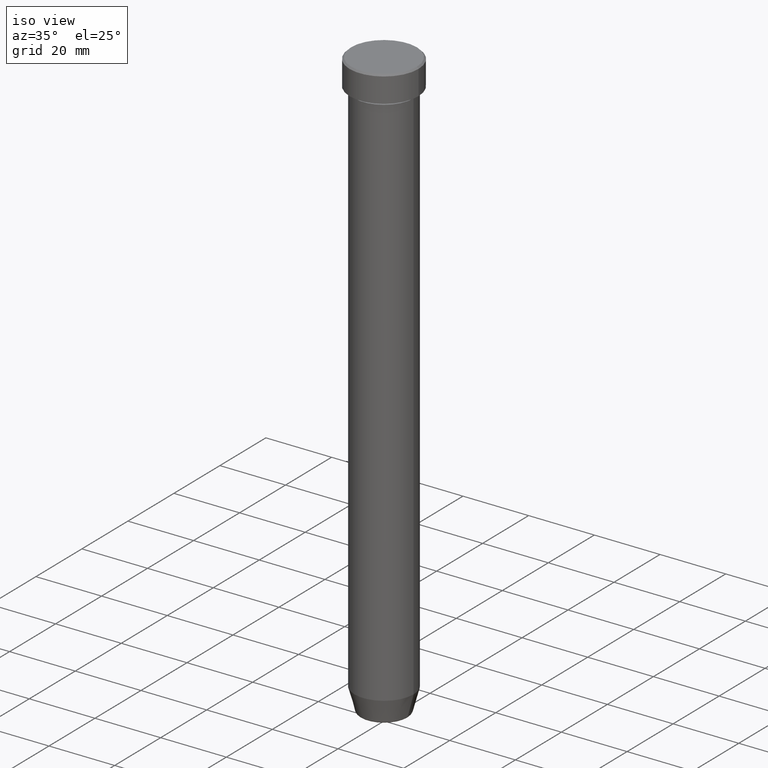
[diagram: clean part render]
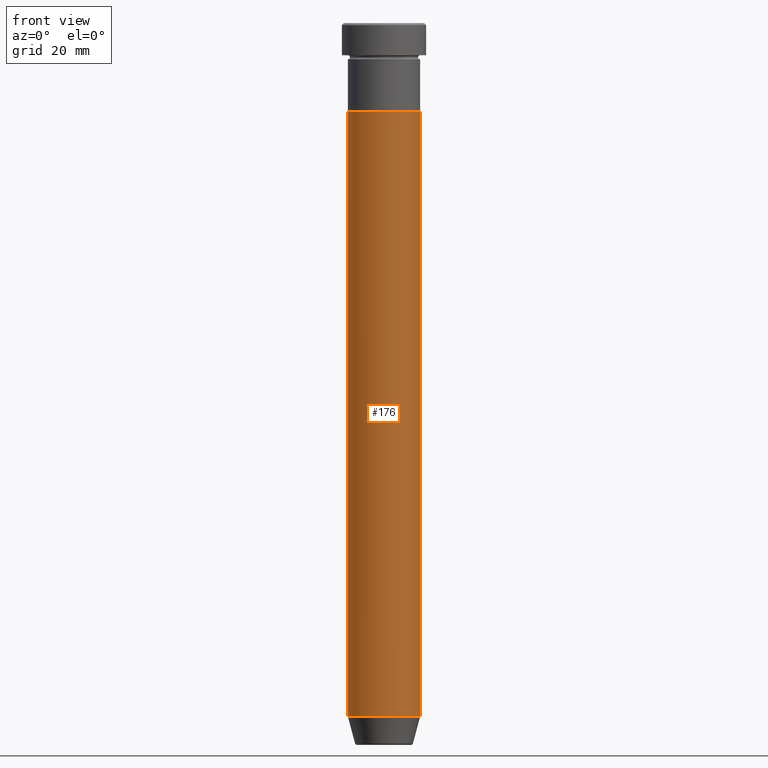
[diagram: tour spotlight — one face highlighted and labeled with its STEP entity id]
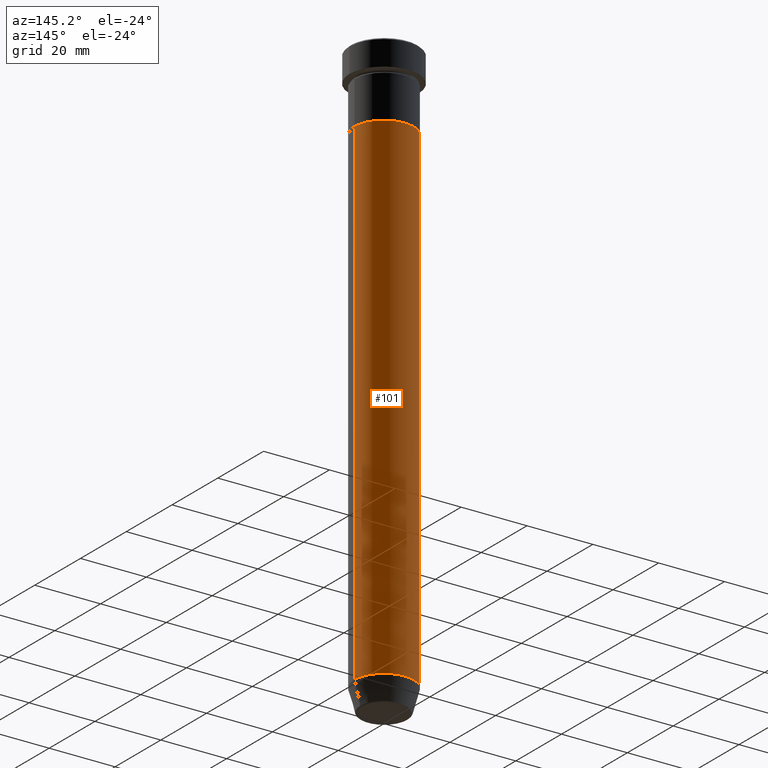
[diagram: tour spotlight — one face highlighted and labeled with its STEP entity id]
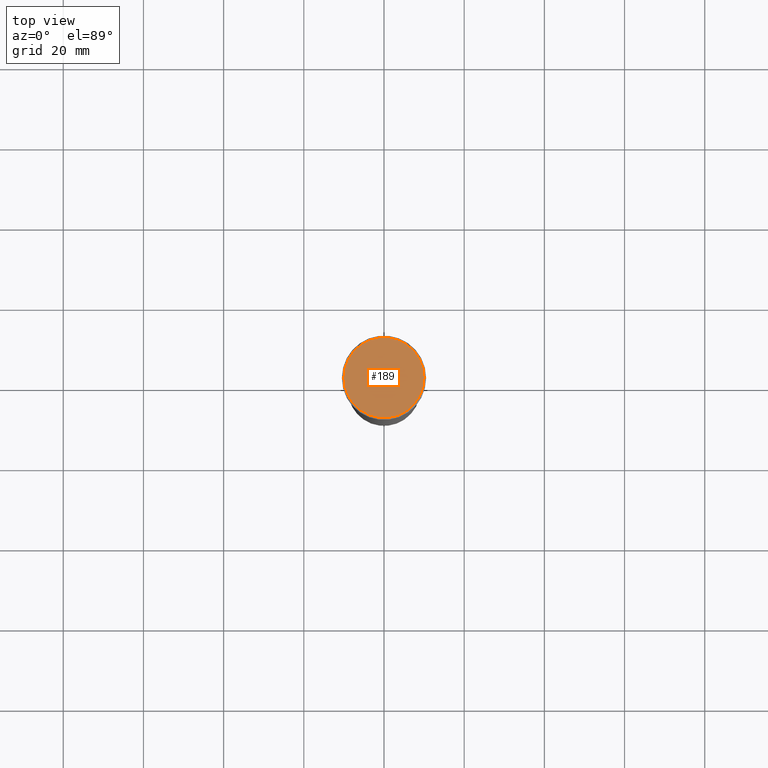
[diagram: tour spotlight — one face highlighted and labeled with its STEP entity id]
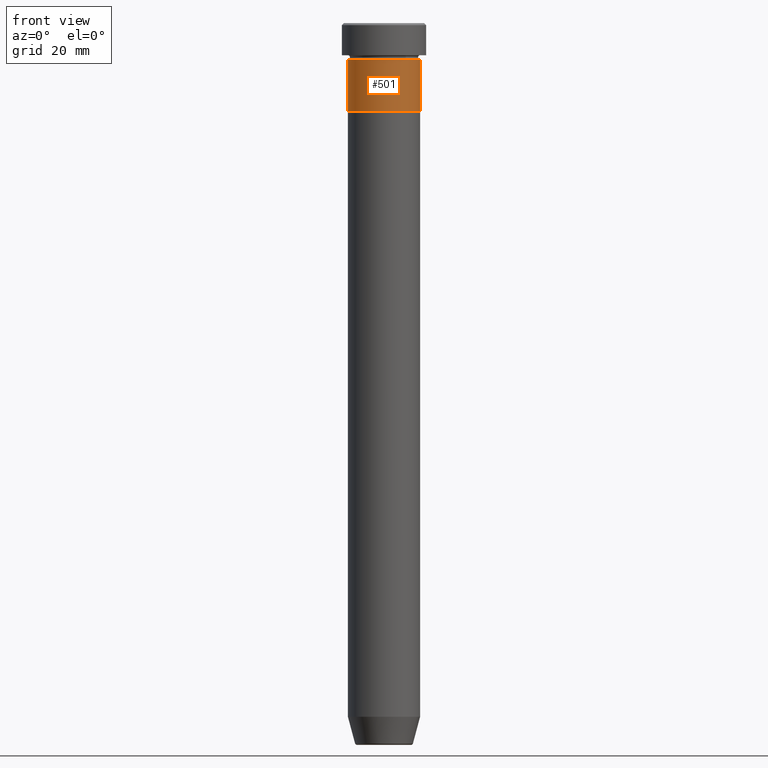
[diagram: tour spotlight — one face highlighted and labeled with its STEP entity id]
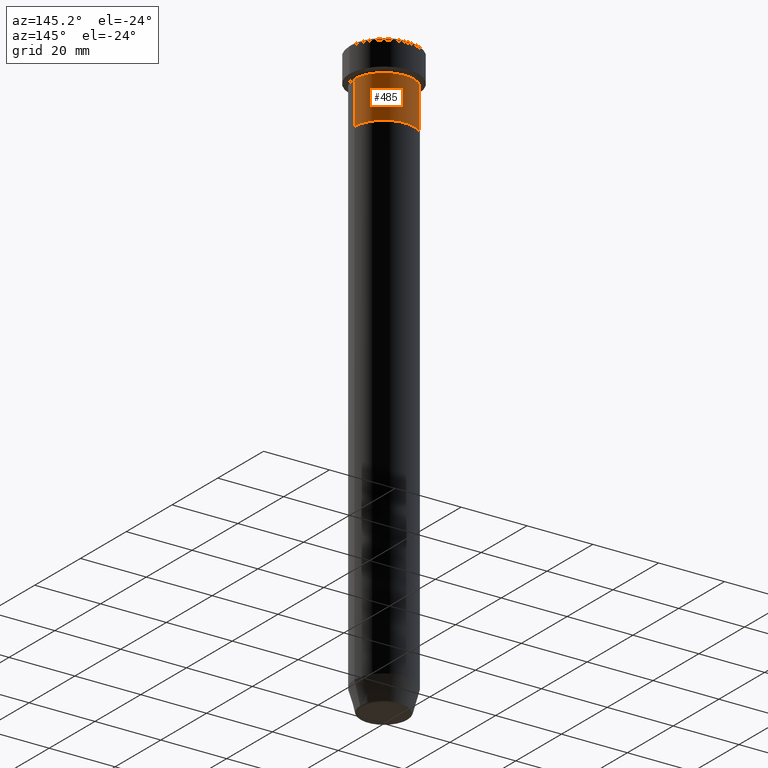
[diagram: tour spotlight — one face highlighted and labeled with its STEP entity id]
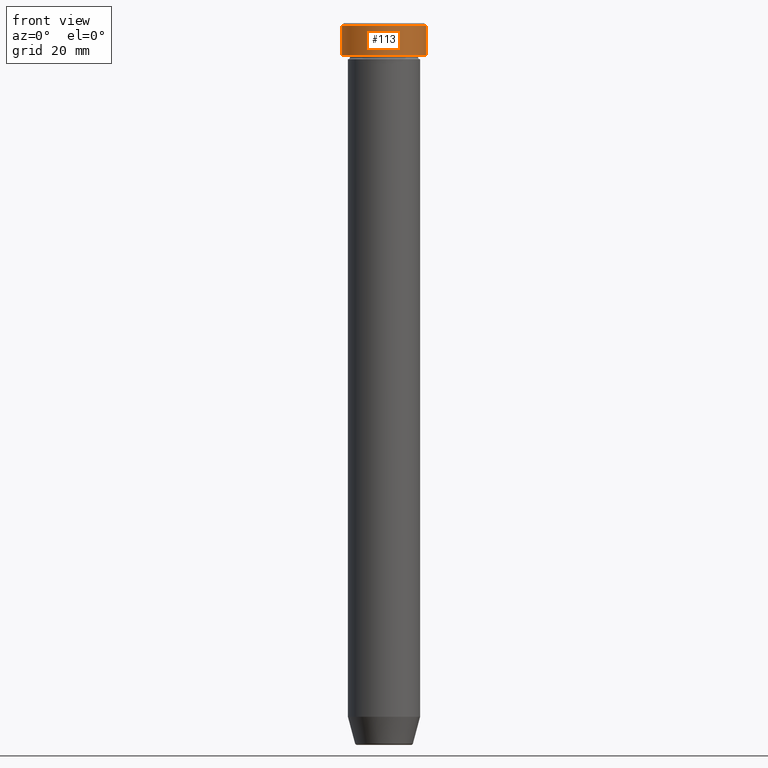
[diagram: tour spotlight — one face highlighted and labeled with its STEP entity id]
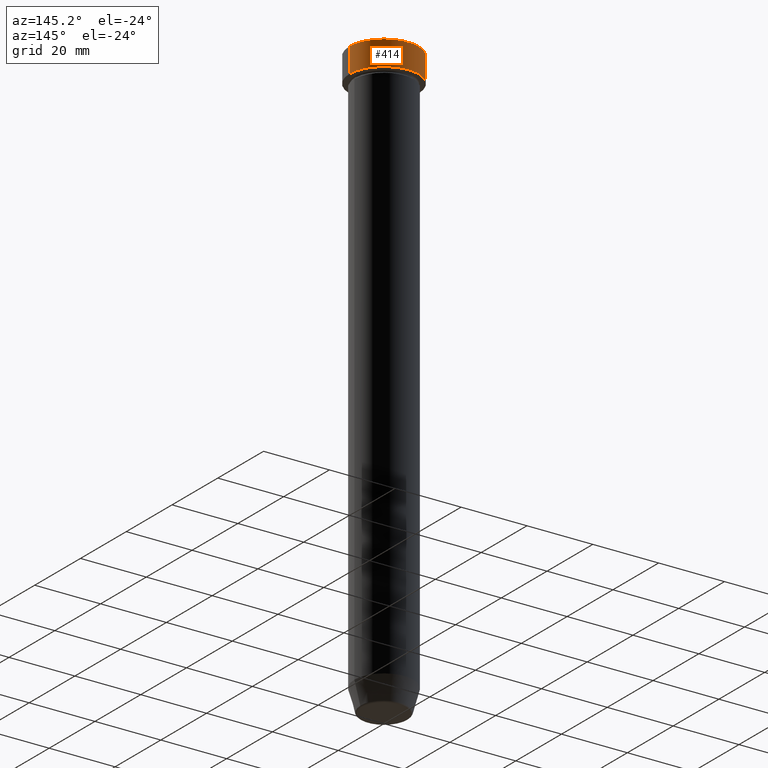
[diagram: tour spotlight — one face highlighted and labeled with its STEP entity id]
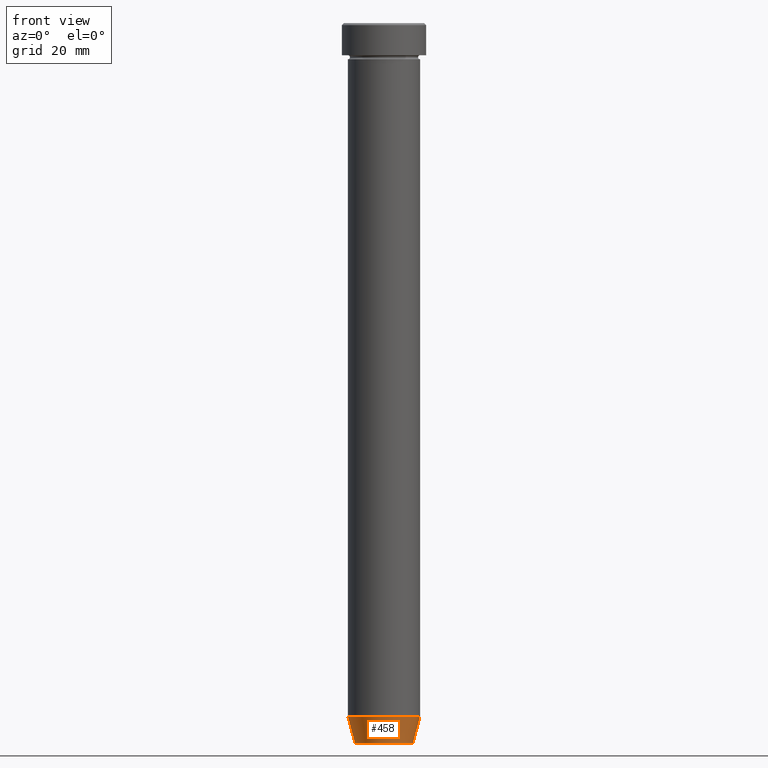
[diagram: tour spotlight — one face highlighted and labeled with its STEP entity id]
A machine part: a face-by-face anatomy tour. The part has 21 B-rep faces; the first image is the clean iso view, then the 8 largest visible faces are spotlighted one at a time (largest first), each with its STEP entity span.

Face 1 — front view, entity #176. In plain terms, the highlighted cylindrical surface (edge-blend (fillet) strip) has radius 9 mm, axis along (-0, -0, 1).
Definition (entity closure, byte-faithful):
#3 = CARTESIAN_POINT ( 'NONE',  ( -9.000000000000000000, 1.102182119232617714E-15, 0.000000000000000000 ) ) ;
#5 = LINE ( 'NONE', #381, #137 ) ;
#12 = VERTEX_POINT ( 'NONE', #341 ) ;
#17 = CARTESIAN_POINT ( 'NONE',  ( 0.000000000000000000, 0.000000000000000000, -173.0000000000000000 ) ) ;
#63 = DIRECTION ( 'NONE',  ( 1.000000000000000000, 0.000000000000000000, 0.000000000000000000 ) ) ;
#73 = EDGE_CURVE ( 'NONE', #116, #117, #5, .T. ) ;
#80 = CIRCLE ( 'NONE', #457, 9.000000000000000000 ) ;
#116 = VERTEX_POINT ( 'NONE', #159 ) ;
#117 = VERTEX_POINT ( 'NONE', #575 ) ;
#118 = DIRECTION ( 'NONE',  ( -0.000000000000000000, -0.000000000000000000, 1.000000000000000000 ) ) ;
#137 = VECTOR ( 'NONE', #150, 1000.000000000000000 ) ;
#150 = DIRECTION ( 'NONE',  ( -0.000000000000000000, -0.000000000000000000, 1.000000000000000000 ) ) ;
#159 = CARTESIAN_POINT ( 'NONE',  ( 9.000000000000000000, 0.000000000000000000, -173.0000000000000000 ) ) ;
#162 = CARTESIAN_POINT ( 'NONE',  ( 0.000000000000000000, 0.000000000000000000, 0.000000000000000000 ) ) ;
#176 = ADVANCED_FACE ( 'NONE', ( #312 ), #395, .T. ) ;
#185 = CARTESIAN_POINT ( 'NONE',  ( -9.000000000000000000, 1.102182119232617714E-15, -22.00000000000000000 ) ) ;
#219 = DIRECTION ( 'NONE',  ( -0.000000000000000000, -0.000000000000000000, 1.000000000000000000 ) ) ;
#232 = ORIENTED_EDGE ( 'NONE', *, *, #567, .T. ) ;
#243 = EDGE_CURVE ( 'NONE', #307, #117, #276, .T. ) ;
#247 = ORIENTED_EDGE ( 'NONE', *, *, #509, .F. ) ;
#253 = ORIENTED_EDGE ( 'NONE', *, *, #243, .F. ) ;
#276 = CIRCLE ( 'NONE', #553, 9.000000000000000000 ) ;
#307 = VERTEX_POINT ( 'NONE', #185 ) ;
#312 = FACE_OUTER_BOUND ( 'NONE', #462, .T. ) ;
#315 = CARTESIAN_POINT ( 'NONE',  ( 0.000000000000000000, 0.000000000000000000, -22.00000000000000000 ) ) ;
#341 = CARTESIAN_POINT ( 'NONE',  ( -9.000000000000000000, 1.102182119232617714E-15, -173.0000000000000000 ) ) ;
#374 = ORIENTED_EDGE ( 'NONE', *, *, #73, .T. ) ;
#380 = LINE ( 'NONE', #3, #420 ) ;
#381 = CARTESIAN_POINT ( 'NONE',  ( 9.000000000000000000, 0.000000000000000000, 0.000000000000000000 ) ) ;
#395 = CYLINDRICAL_SURFACE ( 'NONE', #555, 9.000000000000000000 ) ;
#420 = VECTOR ( 'NONE', #574, 1000.000000000000000 ) ;
#457 = AXIS2_PLACEMENT_3D ( 'NONE', #17, #118, #63 ) ;
#462 = EDGE_LOOP ( 'NONE', ( #247, #232, #374, #253 ) ) ;
#500 = DIRECTION ( 'NONE',  ( 1.000000000000000000, 0.000000000000000000, 0.000000000000000000 ) ) ;
#509 = EDGE_CURVE ( 'NONE', #12, #307, #380, .T. ) ;
#536 = DIRECTION ( 'NONE',  ( -0.000000000000000000, -0.000000000000000000, 1.000000000000000000 ) ) ;
#553 = AXIS2_PLACEMENT_3D ( 'NONE', #315, #536, #500 ) ;
#555 = AXIS2_PLACEMENT_3D ( 'NONE', #162, #219, #593 ) ;
#567 = EDGE_CURVE ( 'NONE', #12, #116, #80, .T. ) ;
#574 = DIRECTION ( 'NONE',  ( -0.000000000000000000, -0.000000000000000000, 1.000000000000000000 ) ) ;
#575 = CARTESIAN_POINT ( 'NONE',  ( 9.000000000000000000, 0.000000000000000000, -22.00000000000000000 ) ) ;
#593 = DIRECTION ( 'NONE',  ( 1.000000000000000000, 0.000000000000000000, 0.000000000000000000 ) ) ;

Face 2 — auxiliary view, entity #101. In plain terms, the highlighted cylindrical surface (edge-blend (fillet) strip) has radius 9 mm, axis along (-0, -0, 1).
Definition (entity closure, byte-faithful):
#3 = CARTESIAN_POINT ( 'NONE',  ( -9.000000000000000000, 1.102182119232617714E-15, 0.000000000000000000 ) ) ;
#5 = LINE ( 'NONE', #381, #137 ) ;
#7 = CIRCLE ( 'NONE', #123, 9.000000000000000000 ) ;
#12 = VERTEX_POINT ( 'NONE', #341 ) ;
#59 = AXIS2_PLACEMENT_3D ( 'NONE', #154, #65, #345 ) ;
#65 = DIRECTION ( 'NONE',  ( -0.000000000000000000, -0.000000000000000000, 1.000000000000000000 ) ) ;
#67 = ORIENTED_EDGE ( 'NONE', *, *, #423, .F. ) ;
#73 = EDGE_CURVE ( 'NONE', #116, #117, #5, .T. ) ;
#85 = EDGE_CURVE ( 'NONE', #116, #12, #7, .T. ) ;
#97 = CARTESIAN_POINT ( 'NONE',  ( 0.000000000000000000, 0.000000000000000000, -22.00000000000000000 ) ) ;
#101 = ADVANCED_FACE ( 'NONE', ( #111 ), #432, .T. ) ;
#107 = DIRECTION ( 'NONE',  ( 1.000000000000000000, 0.000000000000000000, 0.000000000000000000 ) ) ;
#111 = FACE_OUTER_BOUND ( 'NONE', #125, .T. ) ;
#116 = VERTEX_POINT ( 'NONE', #159 ) ;
#117 = VERTEX_POINT ( 'NONE', #575 ) ;
#123 = AXIS2_PLACEMENT_3D ( 'NONE', #349, #339, #107 ) ;
#125 = EDGE_LOOP ( 'NONE', ( #527, #273, #67, #193 ) ) ;
#137 = VECTOR ( 'NONE', #150, 1000.000000000000000 ) ;
#150 = DIRECTION ( 'NONE',  ( -0.000000000000000000, -0.000000000000000000, 1.000000000000000000 ) ) ;
#154 = CARTESIAN_POINT ( 'NONE',  ( 0.000000000000000000, 0.000000000000000000, 0.000000000000000000 ) ) ;
#159 = CARTESIAN_POINT ( 'NONE',  ( 9.000000000000000000, 0.000000000000000000, -173.0000000000000000 ) ) ;
#185 = CARTESIAN_POINT ( 'NONE',  ( -9.000000000000000000, 1.102182119232617714E-15, -22.00000000000000000 ) ) ;
#193 = ORIENTED_EDGE ( 'NONE', *, *, #73, .F. ) ;
#273 = ORIENTED_EDGE ( 'NONE', *, *, #509, .T. ) ;
#282 = DIRECTION ( 'NONE',  ( -0.000000000000000000, -0.000000000000000000, 1.000000000000000000 ) ) ;
#307 = VERTEX_POINT ( 'NONE', #185 ) ;
#339 = DIRECTION ( 'NONE',  ( -0.000000000000000000, -0.000000000000000000, 1.000000000000000000 ) ) ;
#341 = CARTESIAN_POINT ( 'NONE',  ( -9.000000000000000000, 1.102182119232617714E-15, -173.0000000000000000 ) ) ;
#343 = AXIS2_PLACEMENT_3D ( 'NONE', #97, #282, #508 ) ;
#345 = DIRECTION ( 'NONE',  ( 1.000000000000000000, 0.000000000000000000, 0.000000000000000000 ) ) ;
#349 = CARTESIAN_POINT ( 'NONE',  ( 0.000000000000000000, 0.000000000000000000, -173.0000000000000000 ) ) ;
#380 = LINE ( 'NONE', #3, #420 ) ;
#381 = CARTESIAN_POINT ( 'NONE',  ( 9.000000000000000000, 0.000000000000000000, 0.000000000000000000 ) ) ;
#400 = CIRCLE ( 'NONE', #343, 9.000000000000000000 ) ;
#420 = VECTOR ( 'NONE', #574, 1000.000000000000000 ) ;
#423 = EDGE_CURVE ( 'NONE', #117, #307, #400, .T. ) ;
#432 = CYLINDRICAL_SURFACE ( 'NONE', #59, 9.000000000000000000 ) ;
#508 = DIRECTION ( 'NONE',  ( 1.000000000000000000, 0.000000000000000000, 0.000000000000000000 ) ) ;
#509 = EDGE_CURVE ( 'NONE', #12, #307, #380, .T. ) ;
#527 = ORIENTED_EDGE ( 'NONE', *, *, #85, .T. ) ;
#574 = DIRECTION ( 'NONE',  ( -0.000000000000000000, -0.000000000000000000, 1.000000000000000000 ) ) ;
#575 = CARTESIAN_POINT ( 'NONE',  ( 9.000000000000000000, 0.000000000000000000, -22.00000000000000000 ) ) ;

Face 3 — top view, entity #189. In plain terms, the highlighted planar face has unit normal (0, -0, 1).
Definition (entity closure, byte-faithful):
#47 = VERTEX_POINT ( 'NONE', #384 ) ;
#58 = AXIS2_PLACEMENT_3D ( 'NONE', #256, #518, #292 ) ;
#64 = EDGE_CURVE ( 'NONE', #47, #161, #248, .T. ) ;
#72 = CARTESIAN_POINT ( 'NONE',  ( 0.000000000000000000, 0.000000000000000000, 0.000000000000000000 ) ) ;
#78 = DIRECTION ( 'NONE',  ( 0.000000000000000000, -0.000000000000000000, 1.000000000000000000 ) ) ;
#142 = ORIENTED_EDGE ( 'NONE', *, *, #64, .T. ) ;
#161 = VERTEX_POINT ( 'NONE', #170 ) ;
#170 = CARTESIAN_POINT ( 'NONE',  ( 10.00000000000000178, 1.255262969126037241E-15, 0.000000000000000000 ) ) ;
#178 = AXIS2_PLACEMENT_3D ( 'NONE', #72, #386, #258 ) ;
#189 = ADVANCED_FACE ( 'NONE', ( #546 ), #322, .T. ) ;
#223 = DIRECTION ( 'NONE',  ( 1.000000000000000000, 0.000000000000000000, 0.000000000000000000 ) ) ;
#248 = CIRCLE ( 'NONE', #178, 10.00000000000000178 ) ;
#256 = CARTESIAN_POINT ( 'NONE',  ( 0.000000000000000000, 0.000000000000000000, 0.000000000000000000 ) ) ;
#258 = DIRECTION ( 'NONE',  ( 1.000000000000000000, 0.000000000000000000, 0.000000000000000000 ) ) ;
#289 = EDGE_LOOP ( 'NONE', ( #142, #415 ) ) ;
#292 = DIRECTION ( 'NONE',  ( 1.000000000000000000, 0.000000000000000000, 0.000000000000000000 ) ) ;
#303 = CIRCLE ( 'NONE', #58, 10.00000000000000178 ) ;
#305 = AXIS2_PLACEMENT_3D ( 'NONE', #542, #78, #223 ) ;
#322 = PLANE ( 'NONE',  #305 ) ;
#384 = CARTESIAN_POINT ( 'NONE',  ( -10.00000000000000178, 0.000000000000000000, 0.000000000000000000 ) ) ;
#386 = DIRECTION ( 'NONE',  ( -0.000000000000000000, -0.000000000000000000, 1.000000000000000000 ) ) ;
#415 = ORIENTED_EDGE ( 'NONE', *, *, #521, .T. ) ;
#518 = DIRECTION ( 'NONE',  ( -0.000000000000000000, -0.000000000000000000, 1.000000000000000000 ) ) ;
#521 = EDGE_CURVE ( 'NONE', #161, #47, #303, .T. ) ;
#542 = CARTESIAN_POINT ( 'NONE',  ( 0.000000000000000000, 0.000000000000000000, 0.000000000000000000 ) ) ;
#546 = FACE_OUTER_BOUND ( 'NONE', #289, .T. ) ;

Face 4 — front view, entity #501. In plain terms, the highlighted cylindrical surface (edge-blend (fillet) strip) has radius 9 mm, axis along (-0, -0, 1).
Definition (entity closure, byte-faithful):
#6 = CIRCLE ( 'NONE', #543, 9.000000000000000000 ) ;
#25 = CARTESIAN_POINT ( 'NONE',  ( -9.000000000000000000, 1.102182119232617714E-15, -22.00000000000000000 ) ) ;
#35 = CARTESIAN_POINT ( 'NONE',  ( 9.000000000000000000, 0.000000000000000000, -9.000000000000001776 ) ) ;
#44 = EDGE_CURVE ( 'NONE', #229, #470, #293, .T. ) ;
#48 = CARTESIAN_POINT ( 'NONE',  ( 0.000000000000000000, 0.000000000000000000, -22.00000000000000000 ) ) ;
#52 = DIRECTION ( 'NONE',  ( -0.000000000000000000, -0.000000000000000000, 1.000000000000000000 ) ) ;
#53 = ORIENTED_EDGE ( 'NONE', *, *, #347, .T. ) ;
#54 = DIRECTION ( 'NONE',  ( 1.000000000000000000, 0.000000000000000000, 0.000000000000000000 ) ) ;
#66 = CARTESIAN_POINT ( 'NONE',  ( 0.000000000000000000, 0.000000000000000000, -9.000000000000001776 ) ) ;
#75 = DIRECTION ( 'NONE',  ( -0.000000000000000000, -0.000000000000000000, 1.000000000000000000 ) ) ;
#86 = CARTESIAN_POINT ( 'NONE',  ( 9.000000000000000000, 0.000000000000000000, 0.000000000000000000 ) ) ;
#100 = AXIS2_PLACEMENT_3D ( 'NONE', #48, #52, #370 ) ;
#103 = ORIENTED_EDGE ( 'NONE', *, *, #277, .T. ) ;
#147 = DIRECTION ( 'NONE',  ( -0.000000000000000000, -0.000000000000000000, 1.000000000000000000 ) ) ;
#165 = EDGE_LOOP ( 'NONE', ( #285, #53, #103, #205 ) ) ;
#175 = CARTESIAN_POINT ( 'NONE',  ( 9.000000000000000000, 0.000000000000000000, -22.00000000000000000 ) ) ;
#205 = ORIENTED_EDGE ( 'NONE', *, *, #517, .F. ) ;
#211 = VERTEX_POINT ( 'NONE', #35 ) ;
#229 = VERTEX_POINT ( 'NONE', #25 ) ;
#246 = CIRCLE ( 'NONE', #100, 9.000000000000000000 ) ;
#277 = EDGE_CURVE ( 'NONE', #387, #211, #539, .T. ) ;
#284 = AXIS2_PLACEMENT_3D ( 'NONE', #566, #350, #348 ) ;
#285 = ORIENTED_EDGE ( 'NONE', *, *, #44, .F. ) ;
#293 = LINE ( 'NONE', #516, #342 ) ;
#342 = VECTOR ( 'NONE', #484, 1000.000000000000000 ) ;
#347 = EDGE_CURVE ( 'NONE', #229, #387, #246, .T. ) ;
#348 = DIRECTION ( 'NONE',  ( 1.000000000000000000, 0.000000000000000000, 0.000000000000000000 ) ) ;
#350 = DIRECTION ( 'NONE',  ( -0.000000000000000000, -0.000000000000000000, 1.000000000000000000 ) ) ;
#370 = DIRECTION ( 'NONE',  ( 1.000000000000000000, 0.000000000000000000, 0.000000000000000000 ) ) ;
#383 = FACE_OUTER_BOUND ( 'NONE', #165, .T. ) ;
#387 = VERTEX_POINT ( 'NONE', #175 ) ;
#425 = CARTESIAN_POINT ( 'NONE',  ( -9.000000000000000000, 1.102182119232617714E-15, -9.000000000000001776 ) ) ;
#470 = VERTEX_POINT ( 'NONE', #425 ) ;
#471 = CYLINDRICAL_SURFACE ( 'NONE', #284, 9.000000000000000000 ) ;
#484 = DIRECTION ( 'NONE',  ( -0.000000000000000000, -0.000000000000000000, 1.000000000000000000 ) ) ;
#501 = ADVANCED_FACE ( 'NONE', ( #383 ), #471, .T. ) ;
#516 = CARTESIAN_POINT ( 'NONE',  ( -9.000000000000000000, 1.102182119232617714E-15, 0.000000000000000000 ) ) ;
#517 = EDGE_CURVE ( 'NONE', #470, #211, #6, .T. ) ;
#519 = VECTOR ( 'NONE', #75, 1000.000000000000000 ) ;
#539 = LINE ( 'NONE', #86, #519 ) ;
#543 = AXIS2_PLACEMENT_3D ( 'NONE', #66, #147, #54 ) ;
#566 = CARTESIAN_POINT ( 'NONE',  ( 0.000000000000000000, 0.000000000000000000, 0.000000000000000000 ) ) ;

Face 5 — auxiliary view, entity #485. In plain terms, the highlighted cylindrical surface (edge-blend (fillet) strip) has radius 9 mm, axis along (-0, -0, 1).
Definition (entity closure, byte-faithful):
#1 = DIRECTION ( 'NONE',  ( 1.000000000000000000, 0.000000000000000000, 0.000000000000000000 ) ) ;
#14 = ORIENTED_EDGE ( 'NONE', *, *, #277, .F. ) ;
#25 = CARTESIAN_POINT ( 'NONE',  ( -9.000000000000000000, 1.102182119232617714E-15, -22.00000000000000000 ) ) ;
#28 = CIRCLE ( 'NONE', #224, 9.000000000000000000 ) ;
#35 = CARTESIAN_POINT ( 'NONE',  ( 9.000000000000000000, 0.000000000000000000, -9.000000000000001776 ) ) ;
#44 = EDGE_CURVE ( 'NONE', #229, #470, #293, .T. ) ;
#75 = DIRECTION ( 'NONE',  ( -0.000000000000000000, -0.000000000000000000, 1.000000000000000000 ) ) ;
#86 = CARTESIAN_POINT ( 'NONE',  ( 9.000000000000000000, 0.000000000000000000, 0.000000000000000000 ) ) ;
#99 = CARTESIAN_POINT ( 'NONE',  ( 0.000000000000000000, 0.000000000000000000, -22.00000000000000000 ) ) ;
#106 = CARTESIAN_POINT ( 'NONE',  ( 0.000000000000000000, 0.000000000000000000, 0.000000000000000000 ) ) ;
#112 = AXIS2_PLACEMENT_3D ( 'NONE', #106, #160, #198 ) ;
#153 = DIRECTION ( 'NONE',  ( -0.000000000000000000, -0.000000000000000000, 1.000000000000000000 ) ) ;
#158 = CYLINDRICAL_SURFACE ( 'NONE', #112, 9.000000000000000000 ) ;
#160 = DIRECTION ( 'NONE',  ( -0.000000000000000000, -0.000000000000000000, 1.000000000000000000 ) ) ;
#175 = CARTESIAN_POINT ( 'NONE',  ( 9.000000000000000000, 0.000000000000000000, -22.00000000000000000 ) ) ;
#179 = EDGE_LOOP ( 'NONE', ( #257, #376, #558, #14 ) ) ;
#198 = DIRECTION ( 'NONE',  ( 1.000000000000000000, 0.000000000000000000, 0.000000000000000000 ) ) ;
#211 = VERTEX_POINT ( 'NONE', #35 ) ;
#224 = AXIS2_PLACEMENT_3D ( 'NONE', #245, #153, #249 ) ;
#229 = VERTEX_POINT ( 'NONE', #25 ) ;
#245 = CARTESIAN_POINT ( 'NONE',  ( 0.000000000000000000, 0.000000000000000000, -9.000000000000001776 ) ) ;
#249 = DIRECTION ( 'NONE',  ( 1.000000000000000000, 0.000000000000000000, 0.000000000000000000 ) ) ;
#257 = ORIENTED_EDGE ( 'NONE', *, *, #431, .T. ) ;
#277 = EDGE_CURVE ( 'NONE', #387, #211, #539, .T. ) ;
#287 = DIRECTION ( 'NONE',  ( -0.000000000000000000, -0.000000000000000000, 1.000000000000000000 ) ) ;
#293 = LINE ( 'NONE', #516, #342 ) ;
#342 = VECTOR ( 'NONE', #484, 1000.000000000000000 ) ;
#376 = ORIENTED_EDGE ( 'NONE', *, *, #44, .T. ) ;
#387 = VERTEX_POINT ( 'NONE', #175 ) ;
#425 = CARTESIAN_POINT ( 'NONE',  ( -9.000000000000000000, 1.102182119232617714E-15, -9.000000000000001776 ) ) ;
#431 = EDGE_CURVE ( 'NONE', #387, #229, #494, .T. ) ;
#435 = AXIS2_PLACEMENT_3D ( 'NONE', #99, #287, #1 ) ;
#469 = EDGE_CURVE ( 'NONE', #211, #470, #28, .T. ) ;
#470 = VERTEX_POINT ( 'NONE', #425 ) ;
#483 = FACE_OUTER_BOUND ( 'NONE', #179, .T. ) ;
#484 = DIRECTION ( 'NONE',  ( -0.000000000000000000, -0.000000000000000000, 1.000000000000000000 ) ) ;
#485 = ADVANCED_FACE ( 'NONE', ( #483 ), #158, .T. ) ;
#494 = CIRCLE ( 'NONE', #435, 9.000000000000000000 ) ;
#516 = CARTESIAN_POINT ( 'NONE',  ( -9.000000000000000000, 1.102182119232617714E-15, 0.000000000000000000 ) ) ;
#519 = VECTOR ( 'NONE', #75, 1000.000000000000000 ) ;
#539 = LINE ( 'NONE', #86, #519 ) ;
#558 = ORIENTED_EDGE ( 'NONE', *, *, #469, .F. ) ;

Face 6 — front view, entity #113. In plain terms, the highlighted cylindrical surface (partial cylindrical patch) has radius 10.5 mm, axis along (-0, -0, 1).
Definition (entity closure, byte-faithful):
#61 = CARTESIAN_POINT ( 'NONE',  ( 10.50000000000000000, 0.000000000000000000, -8.000000000000000000 ) ) ;
#68 = AXIS2_PLACEMENT_3D ( 'NONE', #134, #233, #424 ) ;
#105 = CARTESIAN_POINT ( 'NONE',  ( -10.50000000000000000, 1.285879139104720831E-15, 0.000000000000000000 ) ) ;
#110 = LINE ( 'NONE', #105, #564 ) ;
#113 = ADVANCED_FACE ( 'NONE', ( #115 ), #482, .T. ) ;
#115 = FACE_OUTER_BOUND ( 'NONE', #333, .T. ) ;
#121 = ORIENTED_EDGE ( 'NONE', *, *, #371, .T. ) ;
#134 = CARTESIAN_POINT ( 'NONE',  ( 0.000000000000000000, 0.000000000000000000, -8.000000000000000000 ) ) ;
#183 = VERTEX_POINT ( 'NONE', #214 ) ;
#188 = DIRECTION ( 'NONE',  ( 0.000000000000000000, 0.000000000000000000, -1.000000000000000000 ) ) ;
#190 = VECTOR ( 'NONE', #453, 1000.000000000000000 ) ;
#191 = DIRECTION ( 'NONE',  ( -0.000000000000000000, -0.000000000000000000, 1.000000000000000000 ) ) ;
#200 = ORIENTED_EDGE ( 'NONE', *, *, #513, .F. ) ;
#202 = DIRECTION ( 'NONE',  ( 1.000000000000000000, 0.000000000000000000, 0.000000000000000000 ) ) ;
#214 = CARTESIAN_POINT ( 'NONE',  ( -10.50000000000000000, 1.285879139104720831E-15, -8.000000000000000000 ) ) ;
#227 = EDGE_CURVE ( 'NONE', #556, #416, #409, .T. ) ;
#233 = DIRECTION ( 'NONE',  ( -0.000000000000000000, -0.000000000000000000, 1.000000000000000000 ) ) ;
#240 = ORIENTED_EDGE ( 'NONE', *, *, #227, .T. ) ;
#255 = CARTESIAN_POINT ( 'NONE',  ( 0.000000000000000000, 0.000000000000000000, 0.000000000000000000 ) ) ;
#294 = AXIS2_PLACEMENT_3D ( 'NONE', #255, #434, #202 ) ;
#298 = ORIENTED_EDGE ( 'NONE', *, *, #367, .T. ) ;
#323 = CARTESIAN_POINT ( 'NONE',  ( 0.000000000000000000, 0.000000000000000000, -0.5000000000000023315 ) ) ;
#333 = EDGE_LOOP ( 'NONE', ( #200, #298, #240, #121 ) ) ;
#334 = CIRCLE ( 'NONE', #68, 10.50000000000000000 ) ;
#367 = EDGE_CURVE ( 'NONE', #183, #556, #334, .T. ) ;
#371 = EDGE_CURVE ( 'NONE', #416, #392, #427, .T. ) ;
#392 = VERTEX_POINT ( 'NONE', #560 ) ;
#409 = LINE ( 'NONE', #450, #190 ) ;
#416 = VERTEX_POINT ( 'NONE', #548 ) ;
#419 = AXIS2_PLACEMENT_3D ( 'NONE', #323, #188, #596 ) ;
#424 = DIRECTION ( 'NONE',  ( 1.000000000000000000, 0.000000000000000000, 0.000000000000000000 ) ) ;
#427 = CIRCLE ( 'NONE', #419, 10.50000000000000000 ) ;
#434 = DIRECTION ( 'NONE',  ( -0.000000000000000000, -0.000000000000000000, 1.000000000000000000 ) ) ;
#450 = CARTESIAN_POINT ( 'NONE',  ( 10.50000000000000000, 0.000000000000000000, 0.000000000000000000 ) ) ;
#453 = DIRECTION ( 'NONE',  ( -0.000000000000000000, -0.000000000000000000, 1.000000000000000000 ) ) ;
#482 = CYLINDRICAL_SURFACE ( 'NONE', #294, 10.50000000000000000 ) ;
#513 = EDGE_CURVE ( 'NONE', #183, #392, #110, .T. ) ;
#548 = CARTESIAN_POINT ( 'NONE',  ( 10.50000000000000000, 0.000000000000000000, -0.5000000000000023315 ) ) ;
#556 = VERTEX_POINT ( 'NONE', #61 ) ;
#560 = CARTESIAN_POINT ( 'NONE',  ( -10.50000000000000000, 1.285879139104720831E-15, -0.5000000000000023315 ) ) ;
#564 = VECTOR ( 'NONE', #191, 1000.000000000000000 ) ;
#596 = DIRECTION ( 'NONE',  ( 1.000000000000000000, 0.000000000000000000, 0.000000000000000000 ) ) ;

Face 7 — auxiliary view, entity #414. In plain terms, the highlighted cylindrical surface (partial cylindrical patch) has radius 10.5 mm, axis along (-0, -0, 1).
Definition (entity closure, byte-faithful):
#27 = CIRCLE ( 'NONE', #265, 10.50000000000000000 ) ;
#60 = ORIENTED_EDGE ( 'NONE', *, *, #513, .T. ) ;
#61 = CARTESIAN_POINT ( 'NONE',  ( 10.50000000000000000, 0.000000000000000000, -8.000000000000000000 ) ) ;
#70 = ORIENTED_EDGE ( 'NONE', *, *, #238, .T. ) ;
#88 = CIRCLE ( 'NONE', #426, 10.50000000000000000 ) ;
#105 = CARTESIAN_POINT ( 'NONE',  ( -10.50000000000000000, 1.285879139104720831E-15, 0.000000000000000000 ) ) ;
#110 = LINE ( 'NONE', #105, #564 ) ;
#141 = ORIENTED_EDGE ( 'NONE', *, *, #227, .F. ) ;
#143 = DIRECTION ( 'NONE',  ( -0.000000000000000000, -0.000000000000000000, 1.000000000000000000 ) ) ;
#183 = VERTEX_POINT ( 'NONE', #214 ) ;
#190 = VECTOR ( 'NONE', #453, 1000.000000000000000 ) ;
#191 = DIRECTION ( 'NONE',  ( -0.000000000000000000, -0.000000000000000000, 1.000000000000000000 ) ) ;
#214 = CARTESIAN_POINT ( 'NONE',  ( -10.50000000000000000, 1.285879139104720831E-15, -8.000000000000000000 ) ) ;
#222 = CARTESIAN_POINT ( 'NONE',  ( 0.000000000000000000, 0.000000000000000000, -0.5000000000000023315 ) ) ;
#227 = EDGE_CURVE ( 'NONE', #556, #416, #409, .T. ) ;
#236 = EDGE_LOOP ( 'NONE', ( #241, #60, #70, #141 ) ) ;
#238 = EDGE_CURVE ( 'NONE', #392, #416, #88, .T. ) ;
#241 = ORIENTED_EDGE ( 'NONE', *, *, #288, .T. ) ;
#264 = DIRECTION ( 'NONE',  ( 1.000000000000000000, 0.000000000000000000, 0.000000000000000000 ) ) ;
#265 = AXIS2_PLACEMENT_3D ( 'NONE', #364, #422, #552 ) ;
#288 = EDGE_CURVE ( 'NONE', #556, #183, #27, .T. ) ;
#355 = DIRECTION ( 'NONE',  ( 0.000000000000000000, 0.000000000000000000, -1.000000000000000000 ) ) ;
#364 = CARTESIAN_POINT ( 'NONE',  ( 0.000000000000000000, 0.000000000000000000, -8.000000000000000000 ) ) ;
#392 = VERTEX_POINT ( 'NONE', #560 ) ;
#409 = LINE ( 'NONE', #450, #190 ) ;
#414 = ADVANCED_FACE ( 'NONE', ( #594 ), #557, .T. ) ;
#416 = VERTEX_POINT ( 'NONE', #548 ) ;
#422 = DIRECTION ( 'NONE',  ( -0.000000000000000000, -0.000000000000000000, 1.000000000000000000 ) ) ;
#426 = AXIS2_PLACEMENT_3D ( 'NONE', #222, #355, #264 ) ;
#450 = CARTESIAN_POINT ( 'NONE',  ( 10.50000000000000000, 0.000000000000000000, 0.000000000000000000 ) ) ;
#453 = DIRECTION ( 'NONE',  ( -0.000000000000000000, -0.000000000000000000, 1.000000000000000000 ) ) ;
#502 = CARTESIAN_POINT ( 'NONE',  ( 0.000000000000000000, 0.000000000000000000, 0.000000000000000000 ) ) ;
#506 = DIRECTION ( 'NONE',  ( 1.000000000000000000, 0.000000000000000000, 0.000000000000000000 ) ) ;
#513 = EDGE_CURVE ( 'NONE', #183, #392, #110, .T. ) ;
#548 = CARTESIAN_POINT ( 'NONE',  ( 10.50000000000000000, 0.000000000000000000, -0.5000000000000023315 ) ) ;
#552 = DIRECTION ( 'NONE',  ( 1.000000000000000000, 0.000000000000000000, 0.000000000000000000 ) ) ;
#556 = VERTEX_POINT ( 'NONE', #61 ) ;
#557 = CYLINDRICAL_SURFACE ( 'NONE', #573, 10.50000000000000000 ) ;
#560 = CARTESIAN_POINT ( 'NONE',  ( -10.50000000000000000, 1.285879139104720831E-15, -0.5000000000000023315 ) ) ;
#564 = VECTOR ( 'NONE', #191, 1000.000000000000000 ) ;
#573 = AXIS2_PLACEMENT_3D ( 'NONE', #502, #143, #506 ) ;
#594 = FACE_OUTER_BOUND ( 'NONE', #236, .T. ) ;

Face 8 — front view, entity #458. In plain terms, the highlighted conical surface has half-angle 15 deg.
Definition (entity closure, byte-faithful):
#8 = ORIENTED_EDGE ( 'NONE', *, *, #559, .T. ) ;
#9 = DIRECTION ( 'NONE',  ( 0.2588190451025210725, 0.000000000000000000, 0.9659258262890680902 ) ) ;
#12 = VERTEX_POINT ( 'NONE', #341 ) ;
#17 = CARTESIAN_POINT ( 'NONE',  ( 0.000000000000000000, 0.000000000000000000, -173.0000000000000000 ) ) ;
#20 = CARTESIAN_POINT ( 'NONE',  ( 0.000000000000000000, 0.000000000000000000, -179.6294095225512706 ) ) ;
#55 = CARTESIAN_POINT ( 'NONE',  ( 7.124355652982136355, 0.000000000000000000, -180.0000000000000000 ) ) ;
#63 = DIRECTION ( 'NONE',  ( 1.000000000000000000, 0.000000000000000000, 0.000000000000000000 ) ) ;
#80 = CIRCLE ( 'NONE', #457, 9.000000000000000000 ) ;
#84 = DIRECTION ( 'NONE',  ( -0.2588190451025210725, 3.169619151431769255E-17, 0.9659258262890680902 ) ) ;
#96 = ORIENTED_EDGE ( 'NONE', *, *, #131, .F. ) ;
#98 = ORIENTED_EDGE ( 'NONE', *, *, #567, .F. ) ;
#116 = VERTEX_POINT ( 'NONE', #159 ) ;
#118 = DIRECTION ( 'NONE',  ( -0.000000000000000000, -0.000000000000000000, 1.000000000000000000 ) ) ;
#119 = LINE ( 'NONE', #301, #535 ) ;
#122 = VECTOR ( 'NONE', #9, 1000.000000000000114 ) ;
#131 = EDGE_CURVE ( 'NONE', #259, #12, #119, .T. ) ;
#140 = CIRCLE ( 'NONE', #477, 7.223655072137189492 ) ;
#146 = CONICAL_SURFACE ( 'NONE', #316, 7.124355652982136355, 0.2617993877991497964 ) ;
#159 = CARTESIAN_POINT ( 'NONE',  ( 9.000000000000000000, 0.000000000000000000, -173.0000000000000000 ) ) ;
#186 = EDGE_CURVE ( 'NONE', #259, #274, #140, .T. ) ;
#197 = EDGE_LOOP ( 'NONE', ( #96, #463, #8, #98 ) ) ;
#207 = DIRECTION ( 'NONE',  ( -1.000000000000000000, 0.000000000000000000, 0.000000000000000000 ) ) ;
#242 = DIRECTION ( 'NONE',  ( 1.000000000000000000, 0.000000000000000000, 0.000000000000000000 ) ) ;
#259 = VERTEX_POINT ( 'NONE', #360 ) ;
#274 = VERTEX_POINT ( 'NONE', #588 ) ;
#290 = FACE_OUTER_BOUND ( 'NONE', #197, .T. ) ;
#301 = CARTESIAN_POINT ( 'NONE',  ( -7.124355652982136355, 8.724819346411924116E-16, -180.0000000000000000 ) ) ;
#316 = AXIS2_PLACEMENT_3D ( 'NONE', #340, #428, #242 ) ;
#340 = CARTESIAN_POINT ( 'NONE',  ( 0.000000000000000000, 0.000000000000000000, -180.0000000000000000 ) ) ;
#341 = CARTESIAN_POINT ( 'NONE',  ( -9.000000000000000000, 1.102182119232617714E-15, -173.0000000000000000 ) ) ;
#360 = CARTESIAN_POINT ( 'NONE',  ( -7.223655072137189492, 9.934123627281763137E-16, -179.6294095225512706 ) ) ;
#363 = DIRECTION ( 'NONE',  ( -0.000000000000000000, -0.000000000000000000, 1.000000000000000000 ) ) ;
#428 = DIRECTION ( 'NONE',  ( -0.000000000000000000, -0.000000000000000000, 1.000000000000000000 ) ) ;
#457 = AXIS2_PLACEMENT_3D ( 'NONE', #17, #118, #63 ) ;
#458 = ADVANCED_FACE ( 'NONE', ( #290 ), #146, .T. ) ;
#463 = ORIENTED_EDGE ( 'NONE', *, *, #186, .T. ) ;
#477 = AXIS2_PLACEMENT_3D ( 'NONE', #20, #363, #207 ) ;
#480 = LINE ( 'NONE', #55, #122 ) ;
#535 = VECTOR ( 'NONE', #84, 1000.000000000000114 ) ;
#559 = EDGE_CURVE ( 'NONE', #274, #116, #480, .T. ) ;
#567 = EDGE_CURVE ( 'NONE', #12, #116, #80, .T. ) ;
#588 = CARTESIAN_POINT ( 'NONE',  ( 7.223655072137189492, 0.000000000000000000, -179.6294095225512706 ) ) ;